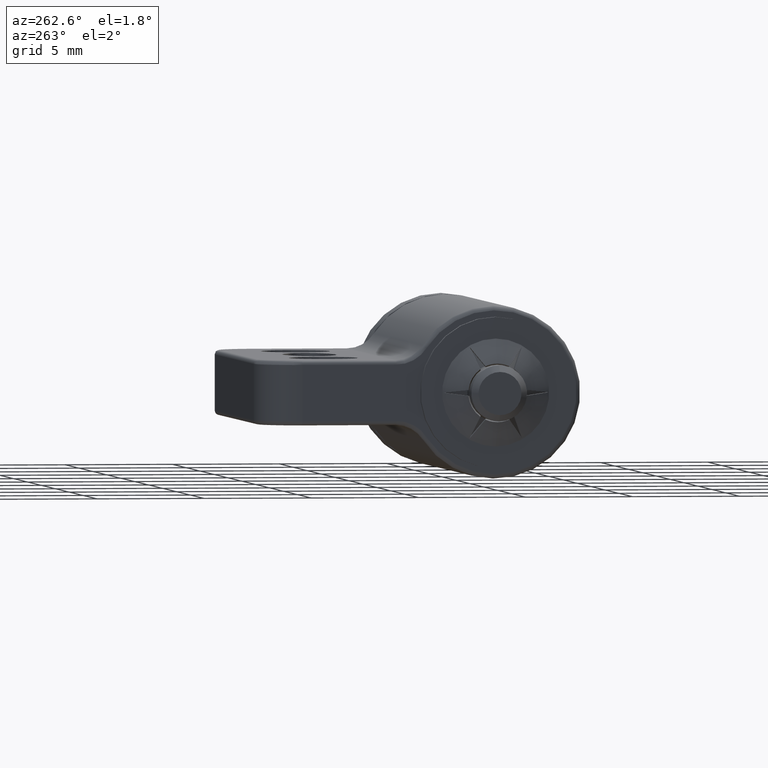
[diagram: clean part render]
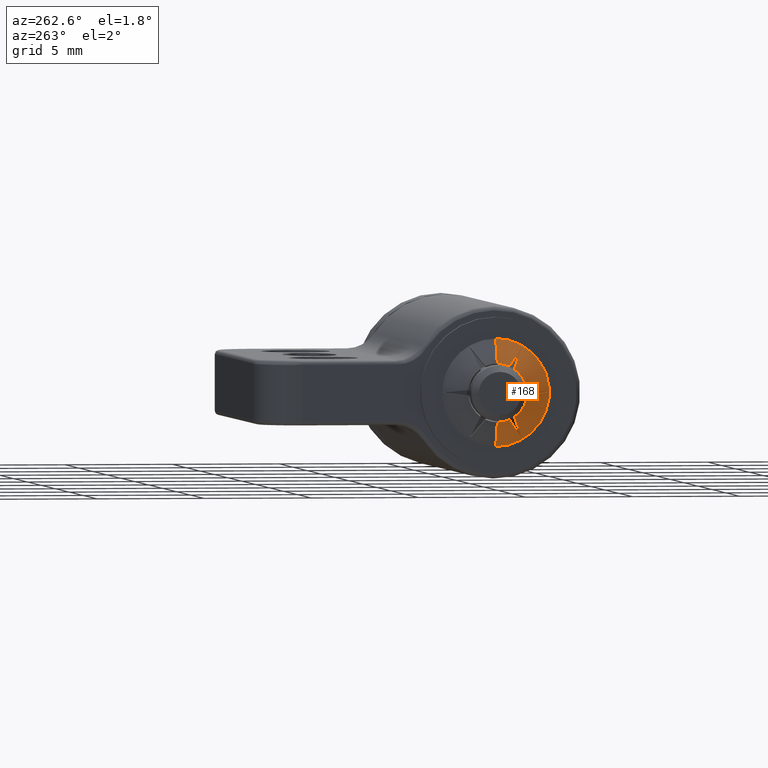
[diagram: same view with one face highlighted and labeled with its STEP entity id]
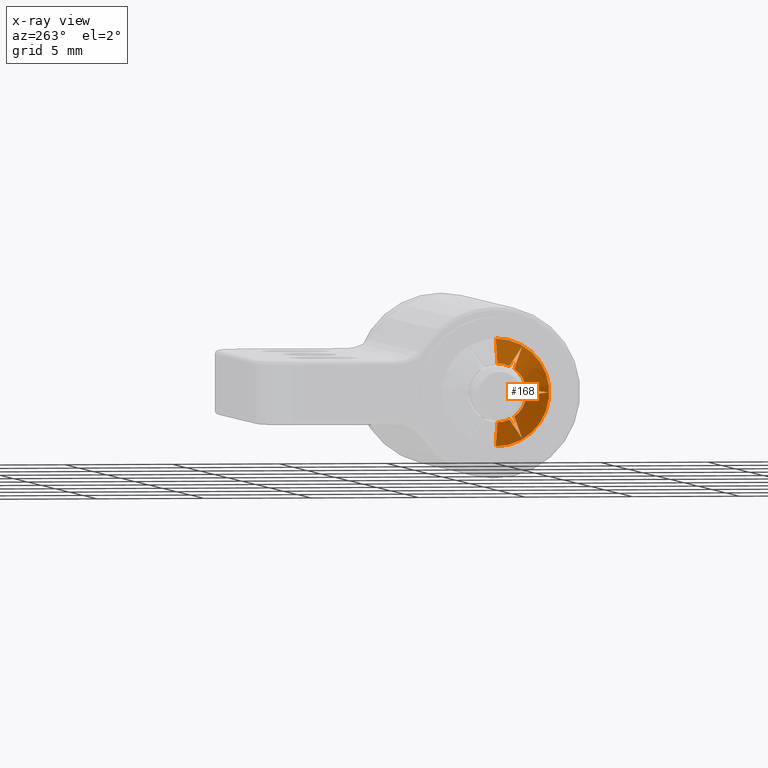
[diagram: x-ray of the same camera — body ghosted, the highlighted face saturated]
A machine part, auxiliary view. The second image highlights one B-rep face of the part: STEP entity #168.
The next image is the same camera in x-ray: the body ghosted, the highlighted face saturated — about 0% of this face is hidden behind the body in this view.
In plain terms, the highlighted face is a freeform B-spline surface patch.
Its self-contained STEP definition (entity closure, byte-faithful):
#168=ADVANCED_FACE('',(#1481),#1480,.T.);
#1480=( BOUNDED_SURFACE() B_SPLINE_SURFACE( 2,1,((#2601,#2602),(#2603,#2604),(#2605,#2606),(#2607,#2608),(#2609,#2610)), .UNSPECIFIED.,.F.,.F.,.F.) B_SPLINE_SURFACE_WITH_KNOTS((3,2,3),(2,2),(0.00000000000E+00,5.00000000000E-01,1.00000000000E+00),(0.00000000000E+00,1.00000000000E+00), .UNSPECIFIED. ) GEOMETRIC_REPRESENTATION_ITEM() RATIONAL_B_SPLINE_SURFACE(((1.00000000000E+00,1.00000000000E+00),(7.07106781187E-01,7.07106781187E-01),(1.00000000000E+00,1.00000000000E+00),(7.07106781187E-01,7.07106781187E-01),(1.00000000000E+00,1.00000000000E+00))) REPRESENTATION_ITEM('') SURFACE() );
#1481=FACE_OUTER_BOUND('',#2611,.T.);
#2601=CARTESIAN_POINT('',(-1.05636509528E+01,0.00000000000E+00,-5.51560181319E-21));
#2602=CARTESIAN_POINT('',(-8.70586795914E+00,-4.32978028118E-16,3.53553390593E+00));
#2603=CARTESIAN_POINT('',(-1.05636509528E+01,0.00000000000E+00,-5.51560181319E-21));
#2604=CARTESIAN_POINT('',(-8.70586795914E+00,-3.53553390593E+00,3.53553390593E+00));
#2605=CARTESIAN_POINT('',(-1.05636509528E+01,0.00000000000E+00,-5.51560181319E-21));
#2606=CARTESIAN_POINT('',(-8.70586795914E+00,-3.53553390593E+00,-2.16487976541E-16));
#2607=CARTESIAN_POINT('',(-1.05636509528E+01,0.00000000000E+00,-5.51560181319E-21));
#2608=CARTESIAN_POINT('',(-8.70586795914E+00,-3.53553390593E+00,-3.53553390593E+00));
#2609=CARTESIAN_POINT('',(-1.05636509528E+01,0.00000000000E+00,-5.51560181319E-21));
#2610=CARTESIAN_POINT('',(-8.70586795914E+00,0.00000000000E+00,-3.53553390593E+00));
#2611=EDGE_LOOP('',(#3417,#3418,#3419,#3420,#3421,#3422,#3423,#3424,#3425,#3426,#3427,#3428,#3429));
#3417=ORIENTED_EDGE('',*,*,#3602,.T.);
#3418=ORIENTED_EDGE('',*,*,#3910,.T.);
#3419=ORIENTED_EDGE('',*,*,#3925,.T.);
#3420=ORIENTED_EDGE('',*,*,#3616,.T.);
#3421=ORIENTED_EDGE('',*,*,#3912,.T.);
#3422=ORIENTED_EDGE('',*,*,#3579,.T.);
#3423=ORIENTED_EDGE('',*,*,#3596,.T.);
#3424=ORIENTED_EDGE('',*,*,#3914,.T.);
#3425=ORIENTED_EDGE('',*,*,#3583,.T.);
#3426=ORIENTED_EDGE('',*,*,#3904,.T.);
#3427=ORIENTED_EDGE('',*,*,#3930,.T.);
#3428=ORIENTED_EDGE('',*,*,#3899,.F.);
#3429=ORIENTED_EDGE('',*,*,#3931,.F.);
#3579=EDGE_CURVE('',#4132,#4125,#4133,.T.);
#3583=EDGE_CURVE('',#4160,#4153,#4161,.T.);
#3596=EDGE_CURVE('',#4125,#4240,#4247,.T.);
#3602=EDGE_CURVE('',#4288,#4281,#4289,.T.);
#3616=EDGE_CURVE('',#4381,#4374,#4382,.T.);
#3899=EDGE_CURVE('',#6271,#6272,#6273,.T.);
#3904=EDGE_CURVE('',#4153,#6299,#6306,.T.);
#3910=EDGE_CURVE('',#4281,#6337,#6344,.T.);
#3912=EDGE_CURVE('',#4374,#4132,#6356,.T.);
#3914=EDGE_CURVE('',#4240,#4160,#6368,.T.);
#3925=EDGE_CURVE('',#6337,#4381,#6435,.T.);
#3930=EDGE_CURVE('',#6299,#6272,#6465,.T.);
#3931=EDGE_CURVE('',#4288,#6271,#6471,.T.);
#4125=VERTEX_POINT('',#6756);
#4132=VERTEX_POINT('',#6761);
#4133=(BOUNDED_CURVE() B_SPLINE_CURVE(2,(#6762,#6763,#6764),.UNSPECIFIED.,.F.,.F.) B_SPLINE_CURVE_WITH_KNOTS((3,3),(5.22718726498E-03,1.30372456816E-01),.UNSPECIFIED.) CURVE() GEOMETRIC_REPRESENTATION_ITEM() RATIONAL_B_SPLINE_CURVE((1.00371670221E+00,1.04634955416E+00,1.00000000000E+00)) REPRESENTATION_ITEM('') );
#4153=VERTEX_POINT('',#6773);
#4160=VERTEX_POINT('',#6778);
#4161=(BOUNDED_CURVE() B_SPLINE_CURVE(2,(#6779,#6780,#6781),.UNSPECIFIED.,.F.,.F.) B_SPLINE_CURVE_WITH_KNOTS((3,3),(5.22718726498E-03,1.30372456816E-01),.UNSPECIFIED.) CURVE() GEOMETRIC_REPRESENTATION_ITEM() RATIONAL_B_SPLINE_CURVE((1.00371670221E+00,1.04634955416E+00,1.00000000000E+00)) REPRESENTATION_ITEM('') );
#4240=VERTEX_POINT('',#6826);
#4247=CIRCLE('',#6834,1.35814416923E+00);
#4281=VERTEX_POINT('',#6855);
#4288=VERTEX_POINT('',#6860);
#4289=CIRCLE('',#6864,1.35814416923E+00);
#4374=VERTEX_POINT('',#6914);
#4381=VERTEX_POINT('',#6919);
#4382=CIRCLE('',#6923,1.35814416923E+00);
#6271=VERTEX_POINT('',#8133);
#6272=VERTEX_POINT('',#8134);
#6273=CIRCLE('',#8138,2.50000000000E+00);
#6299=VERTEX_POINT('',#8153);
#6306=CIRCLE('',#8161,1.35814416923E+00);
#6337=VERTEX_POINT('',#8175);
#6344=(BOUNDED_CURVE() B_SPLINE_CURVE(2,(#8179,#8180,#8181),.UNSPECIFIED.,.F.,.F.) B_SPLINE_CURVE_WITH_KNOTS((3,3),(0.00000000000E+00,1.25145269551E-01),.UNSPECIFIED.) CURVE() GEOMETRIC_REPRESENTATION_ITEM() RATIONAL_B_SPLINE_CURVE((1.00000000000E+00,1.04634955415E+00,1.00371670221E+00)) REPRESENTATION_ITEM('') );
#6356=(BOUNDED_CURVE() B_SPLINE_CURVE(2,(#8185,#8186,#8187),.UNSPECIFIED.,.F.,.F.) B_SPLINE_CURVE_WITH_KNOTS((3,3),(0.00000000000E+00,1.25145269551E-01),.UNSPECIFIED.) CURVE() GEOMETRIC_REPRESENTATION_ITEM() RATIONAL_B_SPLINE_CURVE((1.00000000000E+00,1.04634955416E+00,1.00371670221E+00)) REPRESENTATION_ITEM('') );
#6368=(BOUNDED_CURVE() B_SPLINE_CURVE(2,(#8191,#8192,#8193),.UNSPECIFIED.,.F.,.F.) B_SPLINE_CURVE_WITH_KNOTS((3,3),(0.00000000000E+00,1.25145269551E-01),.UNSPECIFIED.) CURVE() GEOMETRIC_REPRESENTATION_ITEM() RATIONAL_B_SPLINE_CURVE((1.00000000000E+00,1.04634955416E+00,1.00371670221E+00)) REPRESENTATION_ITEM('') );
#6435=(BOUNDED_CURVE() B_SPLINE_CURVE(2,(#8231,#8232,#8233),.UNSPECIFIED.,.F.,.F.) B_SPLINE_CURVE_WITH_KNOTS((3,3),(5.22718726497E-03,1.30372456816E-01),.UNSPECIFIED.) CURVE() GEOMETRIC_REPRESENTATION_ITEM() RATIONAL_B_SPLINE_CURVE((1.00371670221E+00,1.04634955416E+00,1.00000000000E+00)) REPRESENTATION_ITEM('') );
#6465=(BOUNDED_CURVE() B_SPLINE_CURVE(1,(#8246,#8247),.UNSPECIFIED.,.F.,.F.) B_SPLINE_CURVE_WITH_KNOTS((2,2),(3.84141176940E-01,7.07106779360E-01),.UNSPECIFIED.) CURVE() GEOMETRIC_REPRESENTATION_ITEM() RATIONAL_B_SPLINE_CURVE((1.00000000000E+00,1.00000000000E+00)) REPRESENTATION_ITEM('') );
#6471=(BOUNDED_CURVE() B_SPLINE_CURVE(1,(#8248,#8249),.UNSPECIFIED.,.F.,.F.) B_SPLINE_CURVE_WITH_KNOTS((2,2),(3.84141175631E-01,7.07106769887E-01),.UNSPECIFIED.) CURVE() GEOMETRIC_REPRESENTATION_ITEM() RATIONAL_B_SPLINE_CURVE((7.50000000000E-01,7.50000000000E-01)) REPRESENTATION_ITEM('') );
#6756=CARTESIAN_POINT('',(-9.85000000000E+00,-1.35139404558E+00,-1.35239483847E-01));
#6761=CARTESIAN_POINT('',(-9.28241244352E+00,-2.43831610396E+00,3.47161318595E-16));
#6762=CARTESIAN_POINT('',(-9.28241244352E+00,-2.43831610396E+00,3.47161318595E-16));
#6763=CARTESIAN_POINT('',(-9.64922950403E+00,-1.74022910502E+00,-8.68589653586E-02));
#6764=CARTESIAN_POINT('',(-9.85000000000E+00,-1.35139404558E+00,-1.35239483847E-01));
#6773=CARTESIAN_POINT('',(-9.85000000000E+00,-5.58576194184E-01,-1.23796131592E+00));
#6778=CARTESIAN_POINT('',(-9.28241244352E+00,-1.21915805198E+00,-2.11164368848E+00));
#6779=CARTESIAN_POINT('',(-9.28241244352E+00,-1.21915805198E+00,-2.11164368848E+00));
#6780=CARTESIAN_POINT('',(-9.64922950403E+00,-7.94892481964E-01,-1.55051209603E+00));
#6781=CARTESIAN_POINT('',(-9.85000000000E+00,-5.58576194184E-01,-1.23796131592E+00));
#6826=CARTESIAN_POINT('',(-9.85000000000E+00,-7.92817851396E-01,-1.10272183207E+00));
#6831=CARTESIAN_POINT('',(-9.85000000000E+00,0.00000000000E+00,-2.99827882493E-21));
#6832=DIRECTION('',(1.00000000000E+00,-3.49499734825E-22,3.49241099670E-21));
#6833=DIRECTION('',(-0.00000000000E+00,9.95029891667E-01,9.95766774329E-02));
#6834=AXIS2_PLACEMENT_3D('',#6831,#6832,#6833);
#6855=CARTESIAN_POINT('',(-9.85000000000E+00,-5.58576194184E-01,1.23796131592E+00));
#6860=CARTESIAN_POINT('',(-9.85000000000E+00,-9.38007413813E-09,1.35814416923E+00));
#6861=CARTESIAN_POINT('',(-9.85000000000E+00,0.00000000000E+00,-2.99827882493E-21));
#6862=DIRECTION('',(1.00000000000E+00,-1.32236346441E-21,5.96658992313E-22));
#6863=DIRECTION('',(9.40395480658E-38,-4.11279013552E-01,-9.11509502425E-01));
#6864=AXIS2_PLACEMENT_3D('',#6861,#6862,#6863);
#6914=CARTESIAN_POINT('',(-9.85000000000E+00,-1.35139404558E+00,1.35239483847E-01));
#6919=CARTESIAN_POINT('',(-9.85000000000E+00,-7.92817851396E-01,1.10272183207E+00));
#6920=CARTESIAN_POINT('',(-9.85000000000E+00,0.00000000000E+00,-2.99827882493E-21));
#6921=DIRECTION('',(1.00000000000E+00,1.67186319924E-21,1.20201029026E-21));
#6922=DIRECTION('',(-1.88079096132E-37,5.83750878115E-01,-8.11932824992E-01));
#6923=AXIS2_PLACEMENT_3D('',#6920,#6921,#6922);
#8133=CARTESIAN_POINT('',(-9.25000000000E+00,-1.01113312438E-20,2.50000000000E+00));
#8134=CARTESIAN_POINT('',(-9.25000000000E+00,2.96059473233E-16,-2.50000000000E+00));
#8135=CARTESIAN_POINT('',(-9.25000000000E+00,0.00000000000E+00,-8.81846713212E-22));
#8136=DIRECTION('',(1.00000000000E+00,4.31980301869E-37,5.29023293979E-53));
#8137=DIRECTION('',(-0.00000000000E+00,-1.22464679915E-16,1.00000000000E+00));
#8138=AXIS2_PLACEMENT_3D('',#8135,#8136,#8137);
#8153=CARTESIAN_POINT('',(-9.85000000000E+00,-2.90404788262E-17,-1.35814416923E+00));
#8158=CARTESIAN_POINT('',(-9.85000000000E+00,0.00000000000E+00,-2.99827882493E-21));
#8159=DIRECTION('',(1.00000000000E+00,4.31980301869E-37,5.29023293979E-53));
#8160=DIRECTION('',(-0.00000000000E+00,-1.22464679915E-16,1.00000000000E+00));
#8161=AXIS2_PLACEMENT_3D('',#8158,#8159,#8160);
#8175=CARTESIAN_POINT('',(-9.28241244352E+00,-1.21915805198E+00,2.11164368848E+00));
#8179=CARTESIAN_POINT('',(-9.85000000000E+00,-5.58576194184E-01,1.23796131592E+00));
#8180=CARTESIAN_POINT('',(-9.64922950403E+00,-7.94892481965E-01,1.55051209603E+00));
#8181=CARTESIAN_POINT('',(-9.28241244352E+00,-1.21915805198E+00,2.11164368848E+00));
#8185=CARTESIAN_POINT('',(-9.85000000000E+00,-1.35139404558E+00,1.35239483847E-01));
#8186=CARTESIAN_POINT('',(-9.64922950403E+00,-1.74022910502E+00,8.68589653587E-02));
#8187=CARTESIAN_POINT('',(-9.28241244352E+00,-2.43831610396E+00,3.47161318595E-16));
#8191=CARTESIAN_POINT('',(-9.85000000000E+00,-7.92817851396E-01,-1.10272183207E+00));
#8192=CARTESIAN_POINT('',(-9.64922950403E+00,-9.45336623058E-01,-1.46365313068E+00));
#8193=CARTESIAN_POINT('',(-9.28241244352E+00,-1.21915805198E+00,-2.11164368848E+00));
#8231=CARTESIAN_POINT('',(-9.28241244352E+00,-1.21915805198E+00,2.11164368848E+00));
#8232=CARTESIAN_POINT('',(-9.64922950403E+00,-9.45336623058E-01,1.46365313067E+00));
#8233=CARTESIAN_POINT('',(-9.85000000000E+00,-7.92817851396E-01,1.10272183207E+00));
#8246=CARTESIAN_POINT('',(-9.85000000709E+00,3.32638392504E-16,-1.35814415574E+00));
#8247=CARTESIAN_POINT('',(-9.25000000339E+00,6.12303175329E-16,-2.49999999354E+00));
#8248=CARTESIAN_POINT('',(-9.85000000952E+00,-3.98050219366E-16,1.35814415111E+00));
#8249=CARTESIAN_POINT('',(-9.25000002099E+00,-7.32709802344E-16,2.49999996005E+00));